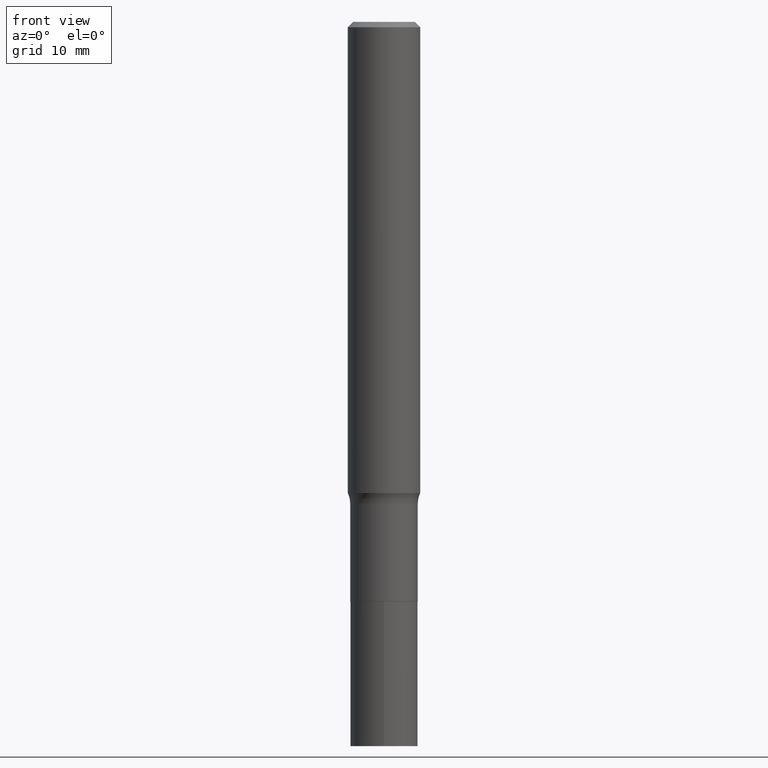
[diagram: clean part render]
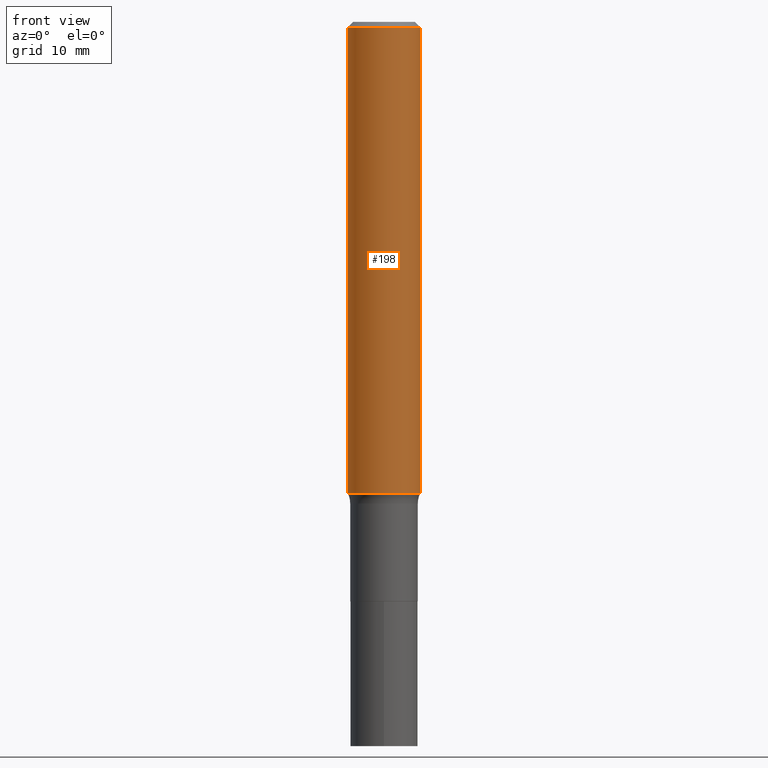
[diagram: same view with one face highlighted and labeled with its STEP entity id]
A machine part, front view. The second image highlights one B-rep face of the part: STEP entity #198.
In plain terms, the highlighted cylindrical surface (edge-blend (fillet) strip) has radius 2.9997 mm, axis along (-0, 0, 1).
Its self-contained STEP definition (entity closure, byte-faithful):
#12 = EDGE_CURVE ( 'NONE', #399, #71, #354, .T. ) ;
#39 = CARTESIAN_POINT ( 'NONE',  ( -0.1181000000000001909, -4.525650578720712535E-15, -1.536540232929025418 ) ) ;
#60 = CARTESIAN_POINT ( 'NONE',  ( 0.1181000000000001909, -6.189489441888142939E-15, -1.536540232929025418 ) ) ;
#71 = VERTEX_POINT ( 'NONE', #321 ) ;
#75 = AXIS2_PLACEMENT_3D ( 'NONE', #81, #258, #261 ) ;
#77 = ORIENTED_EDGE ( 'NONE', *, *, #211, .F. ) ;
#81 = CARTESIAN_POINT ( 'NONE',  ( 4.332147990156997620E-31, -6.185159191760672860E-17, -0.01771500000000011607 ) ) ;
#88 = CARTESIAN_POINT ( 'NONE',  ( 3.757561209076375326E-29, -5.364801549653391521E-15, -1.536540232929025418 ) ) ;
#91 = LINE ( 'NONE', #451, #248 ) ;
#111 = VECTOR ( 'NONE', #429, 39.37007874015748143 ) ;
#117 = CARTESIAN_POINT ( 'NONE',  ( 0.000000000000000000, 0.000000000000000000, 0.000000000000000000 ) ) ;
#133 = ORIENTED_EDGE ( 'NONE', *, *, #374, .T. ) ;
#144 = EDGE_LOOP ( 'NONE', ( #235, #133, #237, #77 ) ) ;
#156 = DIRECTION ( 'NONE',  ( -2.445468806185136597E-29, 3.491481338843145583E-15, 1.000000000000000000 ) ) ;
#198 = ADVANCED_FACE ( 'NONE', ( #467 ), #224, .T. ) ;
#201 = DIRECTION ( 'NONE',  ( 1.000000000000000000, -6.982962677686269077E-15, 0.000000000000000000 ) ) ;
#211 = EDGE_CURVE ( 'NONE', #442, #71, #369, .T. ) ;
#224 = CYLINDRICAL_SURFACE ( 'NONE', #350, 0.1181000000000001077 ) ;
#235 = ORIENTED_EDGE ( 'NONE', *, *, #266, .F. ) ;
#236 = DIRECTION ( 'NONE',  ( -2.445468806185136597E-29, 3.491481338843145583E-15, 1.000000000000000000 ) ) ;
#237 = ORIENTED_EDGE ( 'NONE', *, *, #12, .T. ) ;
#248 = VECTOR ( 'NONE', #378, 39.37007874015748143 ) ;
#252 = CARTESIAN_POINT ( 'NONE',  ( 0.1181000000000001077, -8.246878922347488542E-16, 5.758764772215005345E-30 ) ) ;
#258 = DIRECTION ( 'NONE',  ( -2.445468806185136597E-29, 3.491481338843145583E-15, 1.000000000000000000 ) ) ;
#261 = DIRECTION ( 'NONE',  ( 1.000000000000000000, -6.982962677686266711E-15, 0.000000000000000000 ) ) ;
#266 = EDGE_CURVE ( 'NONE', #461, #442, #91, .T. ) ;
#321 = CARTESIAN_POINT ( 'NONE',  ( 0.1180999999999999966, -8.865394841523547570E-16, -0.01771500000000011607 ) ) ;
#350 = AXIS2_PLACEMENT_3D ( 'NONE', #117, #156, #405 ) ;
#354 = LINE ( 'NONE', #252, #111 ) ;
#369 = CIRCLE ( 'NONE', #75, 0.1180999999999999966 ) ;
#374 = EDGE_CURVE ( 'NONE', #461, #399, #431, .T. ) ;
#378 = DIRECTION ( 'NONE',  ( -2.445468806185136877E-29, 3.491481338843145188E-15, 1.000000000000000000 ) ) ;
#389 = AXIS2_PLACEMENT_3D ( 'NONE', #88, #236, #201 ) ;
#399 = VERTEX_POINT ( 'NONE', #60 ) ;
#405 = DIRECTION ( 'NONE',  ( 1.000000000000000000, -6.982962677686266711E-15, 4.876176775795935793E-29 ) ) ;
#429 = DIRECTION ( 'NONE',  ( -2.445468806185136877E-29, 3.491481338843145188E-15, 1.000000000000000000 ) ) ;
#431 = CIRCLE ( 'NONE', #389, 0.1181000000000001909 ) ;
#442 = VERTEX_POINT ( 'NONE', #443 ) ;
#443 = CARTESIAN_POINT ( 'NONE',  ( -0.1180999999999999966, -1.874175599852819479E-15, -0.01771500000000011607 ) ) ;
#451 = CARTESIAN_POINT ( 'NONE',  ( -0.1181000000000001077, 8.391509709326790846E-16, -5.809262341591049389E-30 ) ) ;
#461 = VERTEX_POINT ( 'NONE', #39 ) ;
#467 = FACE_OUTER_BOUND ( 'NONE', #144, .T. ) ;